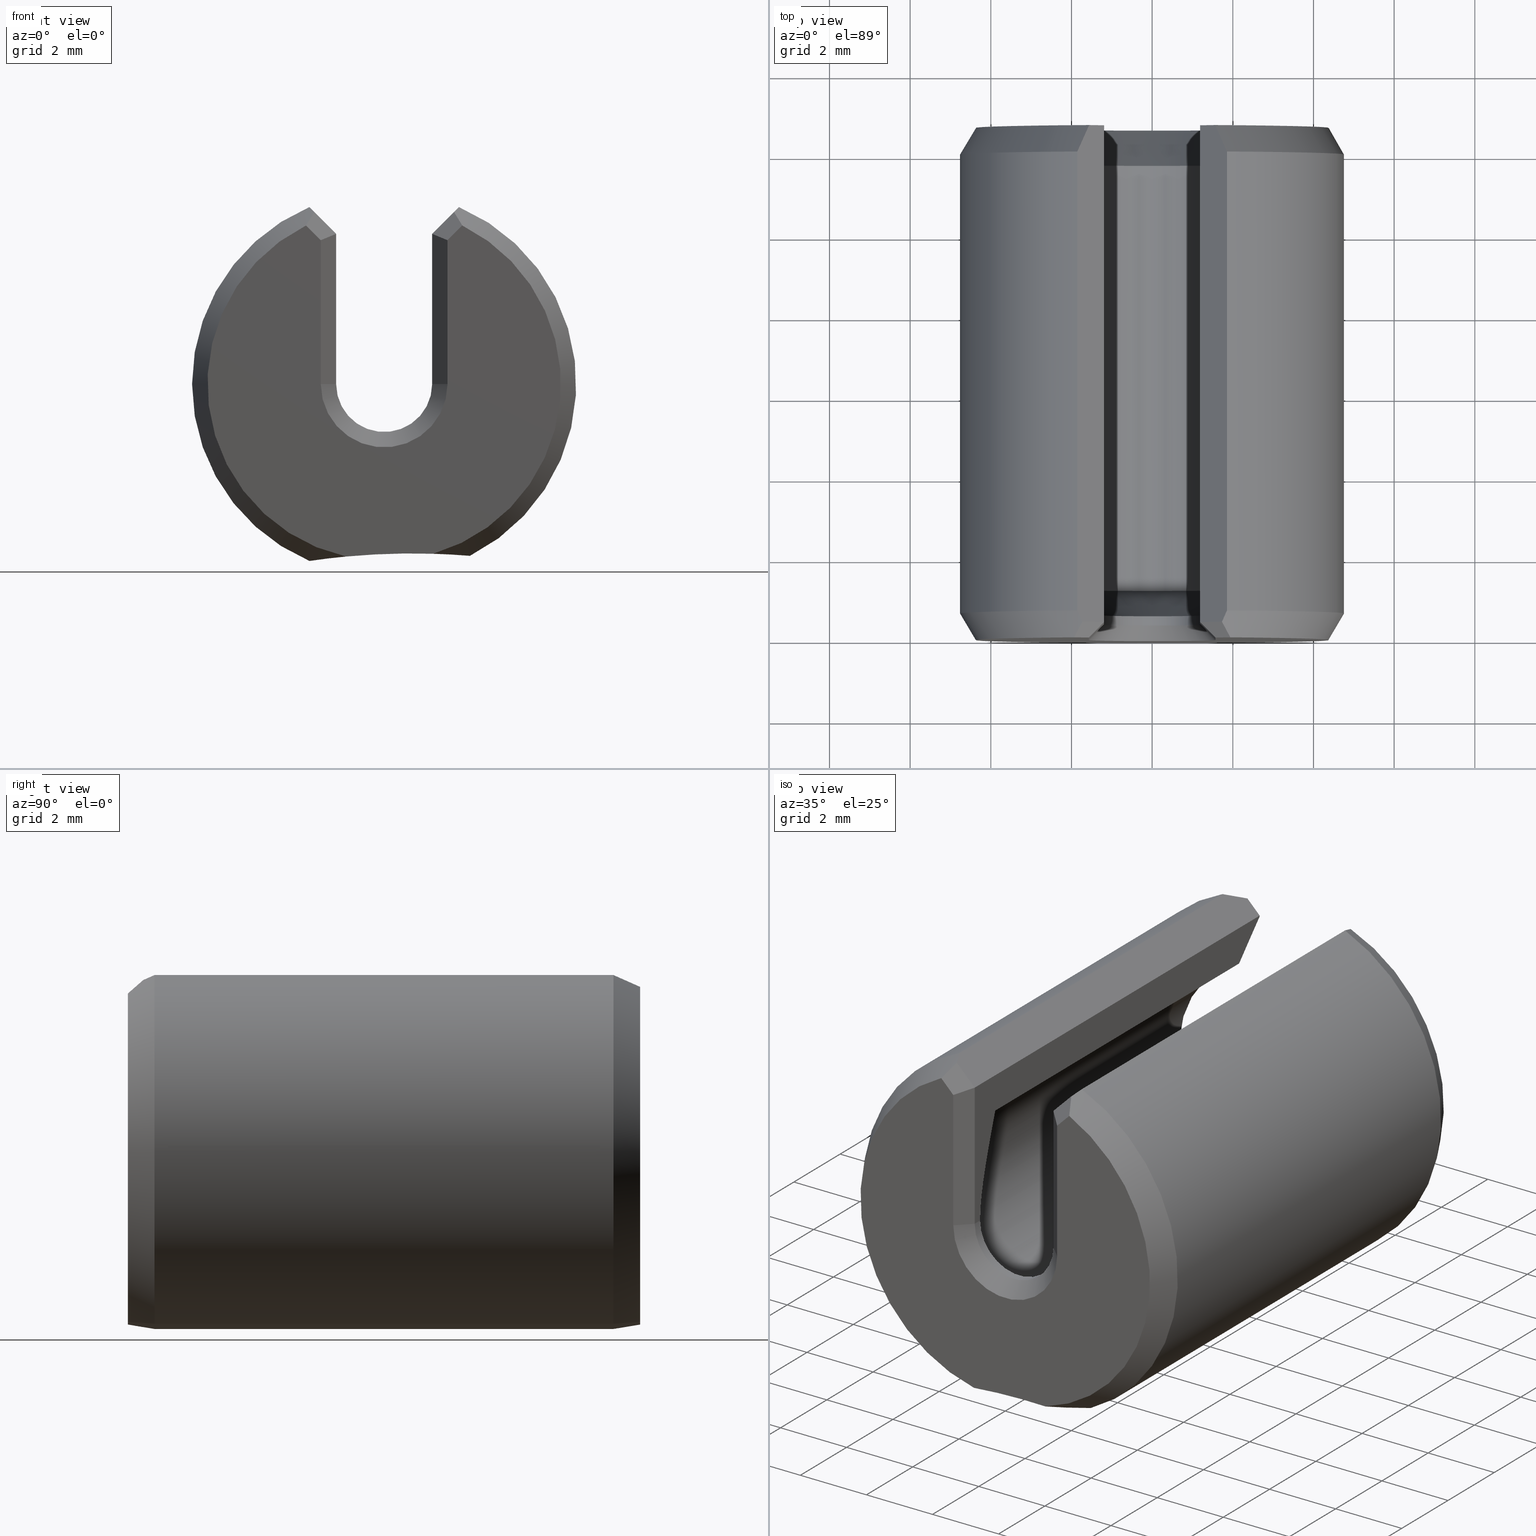
[diagram: canonical four-view strip — front | top / right | iso, engineering-drawing reading convention]
A machine part, canonical four-view strip (front | top / right | iso — engineering-drawing reading convention). The complete STEP part file that produces these views, byte-faithful:
ISO-10303-21;
HEADER;
FILE_DESCRIPTION (( 'STEP AP214' ),
    '1' );
FILE_NAME ('CS0004.STEP',
    '2012-08-01T18:32:51',
    ( '' ),
    ( '' ),
    'SwSTEP 2.0',
    'SolidWorks 2012',
    '' );
FILE_SCHEMA (( 'AUTOMOTIVE_DESIGN' ));
ENDSEC;

DATA;
#1 = CARTESIAN_POINT ( 'NONE',  ( 0.06149523579722515600, 0.5000000000000000000, 0.1611663301506977000 ) ) ;
#2 = CARTESIAN_POINT ( 'NONE',  ( 0.08375733241285908400, 0.4740192378864669400, -0.1677526729059237700 ) ) ;
#3 = CARTESIAN_POINT ( 'NONE',  ( 0.07273034051903576300, 0.4839626413900733900, -0.1668417271900475300 ) ) ;
#4 = CARTESIAN_POINT ( 'NONE',  ( 0.06103877988284105900, 0.4930028514079323200, -0.1661274275444351000 ) ) ;
#5 =( NAMED_UNIT ( * ) SI_UNIT ( $, .STERADIAN. ) SOLID_ANGLE_UNIT ( ) );
#6 =( NAMED_UNIT ( * ) PLANE_ANGLE_UNIT ( ) SI_UNIT ( $, .RADIAN. ) );
#7 =( CONVERSION_BASED_UNIT ( 'INCH', #476 ) LENGTH_UNIT ( ) NAMED_UNIT ( #381 ) );
#8 =( LENGTH_UNIT ( ) NAMED_UNIT ( * ) SI_UNIT ( $, .METRE. ) );
#9 = SURFACE_STYLE_USAGE ( .BOTH. , #10 ) ;
#10 = SURFACE_SIDE_STYLE ('',( #479 ) ) ;
#11 = FILL_AREA_STYLE ('',( #266 ) ) ;
#12 = CARTESIAN_POINT ( 'NONE',  ( 0.04785112842069328500, 0.5000000000000000000, -0.1657302612948712300 ) ) ;
#13 = PRODUCT_DEFINITION_CONTEXT ( 'detailed design', #178, 'design' ) ;
#14 = PRODUCT_DEFINITION_SHAPE ( 'NONE', 'NONE',  #186 ) ;
#15 = LENGTH_MEASURE_WITH_UNIT ( LENGTH_MEASURE( 0.02539999999999999900 ), #161 );
#16 = COLOUR_RGB ( '',0.7921568627450980000, 0.8196078431372548800, 0.9333333333333333500 ) ;
#17 = SURFACE_STYLE_FILL_AREA ( #167 ) ;
#18 = CARTESIAN_POINT ( 'NONE',  ( 0.0000000000000000000, 0.0000000000000000000, 0.0000000000000000000 ) ) ;
#19 = CARTESIAN_POINT ( 'NONE',  ( -0.04687500000000000700, 0.5000000000000000000, 0.1457582889941046700 ) ) ;
#20 = CARTESIAN_POINT ( 'NONE',  ( 0.06187500000000011700, 0.0000000000000000000, 0.0000000000000000000 ) ) ;
#21 = DIRECTION ( 'NONE',  ( 0.0000000000000000000, 0.0000000000000000000, -1.000000000000000000 ) ) ;
#22 = DIRECTION ( 'NONE',  ( 0.0000000000000000000, 1.000000000000000000, 0.0000000000000000000 ) ) ;
#23 = DIRECTION ( 'NONE',  ( 0.0000000000000000000, 0.0000000000000000000, 1.000000000000000000 ) ) ;
#24 = DIRECTION ( 'NONE',  ( -0.7071067811865462400, 0.0000000000000000000, 0.7071067811865487900 ) ) ;
#25 = CARTESIAN_POINT ( 'NONE',  ( -0.07210183751502337300, 0.0000000000000000000, 0.1505597284328993300 ) ) ;
#26 = VECTOR ( 'NONE', #612, 39.37007874015748100 ) ;
#27 = VECTOR ( 'NONE', #309, 39.37007874015748100 ) ;
#28 = VECTOR ( 'NONE', #299, 39.37007874015748100 ) ;
#29 = LINE ( 'NONE', #322, #27 ) ;
#30 = LINE ( 'NONE', #306, #28 ) ;
#31 = DIRECTION ( 'NONE',  ( 0.7071067811865462400, 0.0000000000000000000, -0.7071067811865487900 ) ) ;
#32 = DIRECTION ( 'NONE',  ( 0.0000000000000000000, 0.0000000000000000000, 1.000000000000000000 ) ) ;
#33 = DIRECTION ( 'NONE',  ( 0.0000000000000000000, 1.000000000000000000, 0.0000000000000000000 ) ) ;
#34 = DIRECTION ( 'NONE',  ( 0.0000000000000000000, 0.0000000000000000000, -1.000000000000000000 ) ) ;
#35 = CARTESIAN_POINT ( 'NONE',  ( 0.0000000000000000000, 0.5000000000000000000, 0.0000000000000000000 ) ) ;
#36 = DIRECTION ( 'NONE',  ( -0.0000000000000000000, 1.000000000000000000, -0.0000000000000000000 ) ) ;
#37 = CARTESIAN_POINT ( 'NONE',  ( 0.0000000000000000000, 0.02598076211353325300, 0.0000000000000000000 ) ) ;
#38 = DIRECTION ( 'NONE',  ( -0.0000000000000000000, -0.0000000000000000000, -1.000000000000000000 ) ) ;
#39 = CARTESIAN_POINT ( 'NONE',  ( -0.04687500000000000700, 0.5000000000000000000, 0.0000000000000000000 ) ) ;
#40 = CARTESIAN_POINT ( 'NONE',  ( -0.07302430484008531900, 0.5000000000000000000, 0.1726953991935578900 ) ) ;
#41 = DIRECTION ( 'NONE',  ( -0.0000000000000000000, -1.000000000000000000, -0.0000000000000000000 ) ) ;
#42 = DIRECTION ( 'NONE',  ( 0.0000000000000000000, 1.000000000000000000, 0.0000000000000000000 ) ) ;
#43 = DIRECTION ( 'NONE',  ( -0.7071067811865507900, -0.7071067811865443500, 0.0000000000000000000 ) ) ;
#44 = ORIENTED_EDGE ( 'NONE', *, *, #573, .T. ) ;
#45 = ORIENTED_EDGE ( 'NONE', *, *, #565, .F. ) ;
#46 = ORIENTED_EDGE ( 'NONE', *, *, #574, .T. ) ;
#47 = ORIENTED_EDGE ( 'NONE', *, *, #575, .T. ) ;
#48 = ORIENTED_EDGE ( 'NONE', *, *, #576, .T. ) ;
#49 = ORIENTED_EDGE ( 'NONE', *, *, #577, .T. ) ;
#50 = ORIENTED_EDGE ( 'NONE', *, *, #578, .T. ) ;
#51 = ORIENTED_EDGE ( 'NONE', *, *, #579, .T. ) ;
#52 = ORIENTED_EDGE ( 'NONE', *, *, #573, .F. ) ;
#53 = ORIENTED_EDGE ( 'NONE', *, *, #580, .T. ) ;
#54 = ORIENTED_EDGE ( 'NONE', *, *, #581, .T. ) ;
#55 = ORIENTED_EDGE ( 'NONE', *, *, #582, .F. ) ;
#56 = ORIENTED_EDGE ( 'NONE', *, *, #575, .F. ) ;
#57 = ORIENTED_EDGE ( 'NONE', *, *, #554, .T. ) ;
#58 = ORIENTED_EDGE ( 'NONE', *, *, #583, .T. ) ;
#59 = ORIENTED_EDGE ( 'NONE', *, *, #584, .T. ) ;
#60 = ORIENTED_EDGE ( 'NONE', *, *, #580, .F. ) ;
#61 = ORIENTED_EDGE ( 'NONE', *, *, #574, .F. ) ;
#62 = ORIENTED_EDGE ( 'NONE', *, *, #579, .F. ) ;
#63 = ORIENTED_EDGE ( 'NONE', *, *, #585, .T. ) ;
#64 = ORIENTED_EDGE ( 'NONE', *, *, #558, .F. ) ;
#65 = ORIENTED_EDGE ( 'NONE', *, *, #582, .T. ) ;
#66 = ORIENTED_EDGE ( 'NONE', *, *, #586, .T. ) ;
#67 = ORIENTED_EDGE ( 'NONE', *, *, #587, .T. ) ;
#68 = ORIENTED_EDGE ( 'NONE', *, *, #560, .F. ) ;
#69 = ORIENTED_EDGE ( 'NONE', *, *, #588, .T. ) ;
#70 = ORIENTED_EDGE ( 'NONE', *, *, #577, .F. ) ;
#71 = ORIENTED_EDGE ( 'NONE', *, *, #576, .F. ) ;
#72 = ORIENTED_EDGE ( 'NONE', *, *, #591, .T. ) ;
#73 = ORIENTED_EDGE ( 'NONE', *, *, #557, .F. ) ;
#74 = ORIENTED_EDGE ( 'NONE', *, *, #571, .F. ) ;
#75 = ORIENTED_EDGE ( 'NONE', *, *, #591, .F. ) ;
#76 = ORIENTED_EDGE ( 'NONE', *, *, #537, .T. ) ;
#77 = ORIENTED_EDGE ( 'NONE', *, *, #592, .T. ) ;
#78 = ORIENTED_EDGE ( 'NONE', *, *, #588, .F. ) ;
#79 = ORIENTED_EDGE ( 'NONE', *, *, #590, .T. ) ;
#80 = ORIENTED_EDGE ( 'NONE', *, *, #594, .F. ) ;
#81 = ORIENTED_EDGE ( 'NONE', *, *, #585, .F. ) ;
#82 = ORIENTED_EDGE ( 'NONE', *, *, #578, .F. ) ;
#83 = ORIENTED_EDGE ( 'NONE', *, *, #587, .F. ) ;
#84 = ORIENTED_EDGE ( 'NONE', *, *, #593, .T. ) ;
#85 = ORIENTED_EDGE ( 'NONE', *, *, #594, .T. ) ;
#86 = ORIENTED_EDGE ( 'NONE', *, *, #513, .F. ) ;
#87 = ORIENTED_EDGE ( 'NONE', *, *, #562, .F. ) ;
#88 = ORIENTED_EDGE ( 'NONE', *, *, #561, .F. ) ;
#89 = ORIENTED_EDGE ( 'NONE', *, *, #595, .T. ) ;
#90 = ORIENTED_EDGE ( 'NONE', *, *, #596, .T. ) ;
#91 = ORIENTED_EDGE ( 'NONE', *, *, #556, .F. ) ;
#92 = ORIENTED_EDGE ( 'NONE', *, *, #564, .F. ) ;
#93 = ORIENTED_EDGE ( 'NONE', *, *, #563, .F. ) ;
#94 = ORIENTED_EDGE ( 'NONE', *, *, #583, .F. ) ;
#95 = ORIENTED_EDGE ( 'NONE', *, *, #572, .T. ) ;
#96 = ORIENTED_EDGE ( 'NONE', *, *, #559, .F. ) ;
#97 = ORIENTED_EDGE ( 'NONE', *, *, #589, .F. ) ;
#98 = ORIENTED_EDGE ( 'NONE', *, *, #554, .F. ) ;
#99 = ORIENTED_EDGE ( 'NONE', *, *, #530, .F. ) ;
#100 = ORIENTED_EDGE ( 'NONE', *, *, #519, .F. ) ;
#101 = ORIENTED_EDGE ( 'NONE', *, *, #512, .F. ) ;
#102 = ORIENTED_EDGE ( 'NONE', *, *, #504, .T. ) ;
#103 = ORIENTED_EDGE ( 'NONE', *, *, #589, .T. ) ;
#104 = ORIENTED_EDGE ( 'NONE', *, *, #590, .F. ) ;
#105 = ORIENTED_EDGE ( 'NONE', *, *, #536, .T. ) ;
#106 = ORIENTED_EDGE ( 'NONE', *, *, #595, .F. ) ;
#107 = PRESENTATION_STYLE_ASSIGNMENT (( #169 ) ) ;
#108 = VECTOR ( 'NONE', #617, 39.37007874015748100 ) ;
#109 = LINE ( 'NONE', #607, #108 ) ;
#110 = LINE ( 'NONE', #611, #26 ) ;
#111 = VECTOR ( 'NONE', #626, 39.37007874015748100 ) ;
#112 = LINE ( 'NONE', #619, #111 ) ;
#113 = CIRCLE ( 'NONE', #250, 0.1725000000000000100 ) ;
#114 = VECTOR ( 'NONE', #31, 39.37007874015748100 ) ;
#115 = LINE ( 'NONE', #546, #114 ) ;
#116 = CIRCLE ( 'NONE', #251, 0.1725000000000000400 ) ;
#117 = VECTOR ( 'NONE', #545, 39.37007874015748100 ) ;
#118 = CIRCLE ( 'NONE', #252, 0.6875000000000000000 ) ;
#119 = VECTOR ( 'NONE', #743, 39.37007874015748100 ) ;
#120 = LINE ( 'NONE', #542, #117 ) ;
#121 = LINE ( 'NONE', #740, #119 ) ;
#122 = VECTOR ( 'NONE', #38, 39.37007874015748100 ) ;
#123 = CIRCLE ( 'NONE', #254, 0.1531102362204726500 ) ;
#124 = CIRCLE ( 'NONE', #255, 0.1875000000000000300 ) ;
#125 = LINE ( 'NONE', #39, #122 ) ;
#126 = FACE_OUTER_BOUND ( 'NONE', #712, .T. ) ;
#127 = FACE_OUTER_BOUND ( 'NONE', #711, .T. ) ;
#128 = FACE_OUTER_BOUND ( 'NONE', #731, .T. ) ;
#129 = FACE_OUTER_BOUND ( 'NONE', #714, .T. ) ;
#130 = CYLINDRICAL_SURFACE ( 'NONE', #511, 0.1875000000000000300 ) ;
#131 = CONICAL_SURFACE ( 'NONE', #523, 0.1875000000000000300, 0.5235987755983005900 ) ;
#132 = FACE_OUTER_BOUND ( 'NONE', #718, .T. ) ;
#133 = CYLINDRICAL_SURFACE ( 'NONE', #510, 0.1875000000000000300 ) ;
#134 = CONICAL_SURFACE ( 'NONE', #515, 0.1725000000000000400, 0.5235987755983011500 ) ;
#135 = FACE_OUTER_BOUND ( 'NONE', #708, .T. ) ;
#136 = SHAPE_DEFINITION_REPRESENTATION ( #14, #487 ) ;
#137 = FACE_OUTER_BOUND ( 'NONE', #727, .T. ) ;
#138 = CONICAL_SURFACE ( 'NONE', #520, 0.04687500000000000700, 0.7853981633974528300 ) ;
#139 = FACE_OUTER_BOUND ( 'NONE', #709, .T. ) ;
#140 = VECTOR ( 'NONE', #544, 39.37007874015748100 ) ;
#141 = VECTOR ( 'NONE', #647, 39.37007874015748100 ) ;
#142 = LINE ( 'NONE', #621, #140 ) ;
#143 = CIRCLE ( 'NONE', #259, 0.1181102362204723100 ) ;
#144 = CIRCLE ( 'NONE', #258, 0.04687500000000000700 ) ;
#145 = LINE ( 'NONE', #630, #141 ) ;
#146 = LINE ( 'NONE', #25, #738 ) ;
#147 = LINE ( 'NONE', #681, #151 ) ;
#148 = VECTOR ( 'NONE', #21, 39.37007874015748100 ) ;
#149 = CIRCLE ( 'NONE', #249, 0.06187500000000011700 ) ;
#150 = VECTOR ( 'NONE', #678, 39.37007874015748100 ) ;
#151 = VECTOR ( 'NONE', #680, 39.37007874015748100 ) ;
#152 = LINE ( 'NONE', #679, #150 ) ;
#153 = LINE ( 'NONE', #20, #148 ) ;
#154 = CARTESIAN_POINT ( 'NONE',  ( 0.07141045252930579300, 0.02231754105395833800, 0.1710815468827783800 ) ) ;
#155 = CARTESIAN_POINT ( 'NONE',  ( 0.07302430484008527700, 0.02598076211353323200, 0.1726953991935578900 ) ) ;
#156 = FILL_AREA_STYLE_COLOUR ( '', #16 ) ;
#157 = CARTESIAN_POINT ( 'NONE',  ( -0.04687500000000002100, 0.01499999999999999600, 0.1465460943534724900 ) ) ;
#158 = CARTESIAN_POINT ( 'NONE',  ( -0.06979336728324592200, 0.01865716359912524000, 0.1694644616367184900 ) ) ;
#159 = CARTESIAN_POINT ( 'NONE',  ( -0.06817266041546231300, 0.01499999999999999400, 0.1678437547689348700 ) ) ;
#160 = DIRECTION ( 'NONE',  ( 0.7071067811865462400, 0.0000000000000000000, -0.7071067811865487900 ) ) ;
#161 =( LENGTH_UNIT ( ) NAMED_UNIT ( * ) SI_UNIT ( $, .METRE. ) );
#162 =( CONVERSION_BASED_UNIT ( 'INCH', #15 ) LENGTH_UNIT ( ) NAMED_UNIT ( #379 ) );
#163 =( NAMED_UNIT ( * ) PLANE_ANGLE_UNIT ( ) SI_UNIT ( $, .RADIAN. ) );
#164 =( NAMED_UNIT ( * ) SI_UNIT ( $, .STERADIAN. ) SOLID_ANGLE_UNIT ( ) );
#165 = APPLICATION_PROTOCOL_DEFINITION ( 'draft international standard', 'automotive_design', 1998, #166 ) ;
#166 = APPLICATION_CONTEXT ( 'automotive_design' ) ;
#167 = FILL_AREA_STYLE ('',( #156 ) ) ;
#168 = SURFACE_SIDE_STYLE ('',( #17 ) ) ;
#169 = SURFACE_STYLE_USAGE ( .BOTH. , #168 ) ;
#170 =( LENGTH_UNIT ( ) NAMED_UNIT ( * ) SI_UNIT ( $, .METRE. ) );
#171 =( CONVERSION_BASED_UNIT ( 'INCH', #739 ) LENGTH_UNIT ( ) NAMED_UNIT ( #377 ) );
#172 =( NAMED_UNIT ( * ) PLANE_ANGLE_UNIT ( ) SI_UNIT ( $, .RADIAN. ) );
#173 =( NAMED_UNIT ( * ) SI_UNIT ( $, .STERADIAN. ) SOLID_ANGLE_UNIT ( ) );
#174 = CARTESIAN_POINT ( 'NONE',  ( 0.0000000000000000000, 0.0000000000000000000, 0.0000000000000000000 ) ) ;
#175 = DIRECTION ( 'NONE',  ( 0.0000000000000000000, 0.0000000000000000000, 1.000000000000000000 ) ) ;
#176 = DIRECTION ( 'NONE',  ( 1.000000000000000000, 0.0000000000000000000, 0.0000000000000000000 ) ) ;
#177 = PRODUCT_CONTEXT ( 'NONE', #166, 'mechanical' ) ;
#178 = APPLICATION_CONTEXT ( 'automotive_design' ) ;
#179 = APPLICATION_PROTOCOL_DEFINITION ( 'draft international standard', 'automotive_design', 1998, #178 ) ;
#180 = VECTOR ( 'NONE', #288, 39.37007874015748100 ) ;
#181 = LINE ( 'NONE', #290, #180 ) ;
#182 = LINE ( 'NONE', #157, #183 ) ;
#183 = VECTOR ( 'NONE', #160, 39.37007874015748100 ) ;
#184 = AXIS2_PLACEMENT_3D ( 'NONE', #174, #175, #176 ) ;
#185 =( GEOMETRIC_REPRESENTATION_CONTEXT ( 3 ) GLOBAL_UNCERTAINTY_ASSIGNED_CONTEXT ( ( #492 ) ) GLOBAL_UNIT_ASSIGNED_CONTEXT ( ( #171, #172, #173 ) ) REPRESENTATION_CONTEXT ( 'NONE', 'WORKASPACE' ) );
#186 = PRODUCT_DEFINITION ( 'UNKNOWN', '', #188, #13 ) ;
#187 = PRODUCT_RELATED_PRODUCT_CATEGORY ( 'part', '', ( #540 ) ) ;
#188 = PRODUCT_DEFINITION_FORMATION_WITH_SPECIFIED_SOURCE ( 'ANY', '', #540, .NOT_KNOWN. ) ;
#189 = DIRECTION ( 'NONE',  ( 0.0000000000000000000, 0.0000000000000000000, 1.000000000000000000 ) ) ;
#190 = PLANE ( 'NONE',  #509 ) ;
#191 = PLANE ( 'NONE',  #514 ) ;
#192 = DIRECTION ( 'NONE',  ( 0.0000000000000000000, 0.0000000000000000000, -1.000000000000000000 ) ) ;
#193 = DIRECTION ( 'NONE',  ( -0.0000000000000000000, 1.000000000000000000, -0.0000000000000000000 ) ) ;
#194 = CARTESIAN_POINT ( 'NONE',  ( 0.0000000000000000000, 0.5000000000000000000, 0.0000000000000000000 ) ) ;
#195 = DIRECTION ( 'NONE',  ( -0.0000000000000000000, -1.000000000000000000, -0.0000000000000000000 ) ) ;
#196 = CARTESIAN_POINT ( 'NONE',  ( 0.0000000000000000000, 0.5000000000000000000, 0.0000000000000000000 ) ) ;
#197 = DIRECTION ( 'NONE',  ( 0.0000000000000000000, 0.0000000000000000000, -1.000000000000000000 ) ) ;
#198 = DIRECTION ( 'NONE',  ( -0.0000000000000000000, -1.000000000000000000, -0.0000000000000000000 ) ) ;
#199 = CARTESIAN_POINT ( 'NONE',  ( 0.0000000000000000000, 0.5000000000000000000, 0.0000000000000000000 ) ) ;
#200 = DIRECTION ( 'NONE',  ( 0.0000000000000000000, 0.0000000000000000000, -1.000000000000000000 ) ) ;
#201 = CARTESIAN_POINT ( 'NONE',  ( 0.0000000000000000000, 0.5000000000000000000, 0.0000000000000000000 ) ) ;
#202 = DIRECTION ( 'NONE',  ( -0.7071067811865460200, 0.0000000000000000000, -0.7071067811865490200 ) ) ;
#203 = DIRECTION ( 'NONE',  ( 0.0000000000000000000, 0.0000000000000000000, 1.000000000000000000 ) ) ;
#204 = CARTESIAN_POINT ( 'NONE',  ( 0.04687500000000000700, 0.01499999999999997700, 0.2816858377267488800 ) ) ;
#205 = DIRECTION ( 'NONE',  ( -0.0000000000000000000, -1.000000000000000000, -0.0000000000000000000 ) ) ;
#206 = DIRECTION ( 'NONE',  ( 0.5000000000000013300, 0.7071067811865471300, -0.4999999999999992200 ) ) ;
#207 = CARTESIAN_POINT ( 'NONE',  ( 0.0000000000000000000, 0.0000000000000000000, 0.0000000000000000000 ) ) ;
#208 = CARTESIAN_POINT ( 'NONE',  ( 0.0000000000000000000, 0.01499999999999997700, 0.0000000000000000000 ) ) ;
#209 = CARTESIAN_POINT ( 'NONE',  ( -0.04687500000000000700, 0.05000000000000001000, 0.1084101576193659500 ) ) ;
#210 = DIRECTION ( 'NONE',  ( 0.0000000000000000000, 0.0000000000000000000, -1.000000000000000000 ) ) ;
#211 = DIRECTION ( 'NONE',  ( 0.0000000000000000000, -1.000000000000000000, 0.0000000000000000000 ) ) ;
#212 = DIRECTION ( 'NONE',  ( 0.0000000000000000000, -1.000000000000000000, 0.0000000000000000000 ) ) ;
#213 = DIRECTION ( 'NONE',  ( 0.0000000000000000000, 0.0000000000000000000, 1.000000000000000000 ) ) ;
#214 = DIRECTION ( 'NONE',  ( 0.7071067811865443500, 0.7071067811865507900, -0.0000000000000000000 ) ) ;
#215 = CARTESIAN_POINT ( 'NONE',  ( -0.03922894545893804200, 0.0000000000000000000, 0.03922894545893787500 ) ) ;
#216 = PLANE ( 'NONE',  #516 ) ;
#217 = CARTESIAN_POINT ( 'NONE',  ( 0.07371429709649567100, 0.004945062657089568600, 0.1591655626908129200 ) ) ;
#218 = CARTESIAN_POINT ( 'NONE',  ( 0.07101508980858671500, 0.009947353912967591200, 0.1635406635399070400 ) ) ;
#219 = CARTESIAN_POINT ( 'NONE',  ( -0.07291662851555622000, 0.2500000000000000000, -0.1727408906018617600 ) ) ;
#220 = CARTESIAN_POINT ( 'NONE',  ( 0.06817266041546225800, 0.01499999999999974800, 0.1678437547689348400 ) ) ;
#221 = CARTESIAN_POINT ( 'NONE',  ( 0.06536011632181866500, 0.4913592217458200900, 0.1650312106752912200 ) ) ;
#222 = DIRECTION ( 'NONE',  ( 0.6785983445458518800, -0.6785983445458456700, -0.2810846377148116200 ) ) ;
#223 = CARTESIAN_POINT ( 'NONE',  ( 0.07302430484008525000, 0.4740192378864669900, 0.1726953991935578400 ) ) ;
#224 = CARTESIAN_POINT ( 'NONE',  ( 0.06920121594228201300, 0.4826971197902301700, 0.1688723102957545600 ) ) ;
#225 = CARTESIAN_POINT ( 'NONE',  ( 0.02109796292299801300, 0.04077703707700173300, 0.1572232927085606400 ) ) ;
#226 = DIRECTION ( 'NONE',  ( 0.0000000000000000000, 0.0000000000000000000, 1.000000000000000000 ) ) ;
#227 = DIRECTION ( 'NONE',  ( 0.0000000000000000000, 1.000000000000000000, 0.0000000000000000000 ) ) ;
#228 = DIRECTION ( 'NONE',  ( -0.0000000000000000000, 1.000000000000000000, -0.0000000000000000000 ) ) ;
#229 = CARTESIAN_POINT ( 'NONE',  ( 0.0000000000000000000, 0.5000000000000000000, 0.0000000000000000000 ) ) ;
#230 = DIRECTION ( 'NONE',  ( 0.0000000000000000000, 0.0000000000000000000, 1.000000000000000000 ) ) ;
#231 = ORIENTED_EDGE ( 'NONE', *, *, #558, .T. ) ;
#232 = ORIENTED_EDGE ( 'NONE', *, *, #560, .T. ) ;
#233 = ORIENTED_EDGE ( 'NONE', *, *, #561, .T. ) ;
#234 = ORIENTED_EDGE ( 'NONE', *, *, #526, .T. ) ;
#235 = ORIENTED_EDGE ( 'NONE', *, *, #562, .T. ) ;
#236 = ORIENTED_EDGE ( 'NONE', *, *, #563, .T. ) ;
#237 = ORIENTED_EDGE ( 'NONE', *, *, #564, .T. ) ;
#238 = ORIENTED_EDGE ( 'NONE', *, *, #565, .T. ) ;
#239 = ORIENTED_EDGE ( 'NONE', *, *, #566, .T. ) ;
#240 = ORIENTED_EDGE ( 'NONE', *, *, #567, .T. ) ;
#241 = ORIENTED_EDGE ( 'NONE', *, *, #559, .T. ) ;
#242 = ORIENTED_EDGE ( 'NONE', *, *, #568, .T. ) ;
#243 = ORIENTED_EDGE ( 'NONE', *, *, #569, .T. ) ;
#244 = ORIENTED_EDGE ( 'NONE', *, *, #570, .T. ) ;
#245 = ORIENTED_EDGE ( 'NONE', *, *, #571, .T. ) ;
#246 = ORIENTED_EDGE ( 'NONE', *, *, #572, .F. ) ;
#247 = MECHANICAL_DESIGN_GEOMETRIC_PRESENTATION_REPRESENTATION (  '', ( #256 ), #185 ) ;
#248 = AXIS2_PLACEMENT_3D ( 'NONE', #207, #205, #203 ) ;
#249 = AXIS2_PLACEMENT_3D ( 'NONE', #18, #22, #23 ) ;
#250 = AXIS2_PLACEMENT_3D ( 'NONE', #682, #684, #683 ) ;
#251 = AXIS2_PLACEMENT_3D ( 'NONE', #35, #33, #32 ) ;
#252 = AXIS2_PLACEMENT_3D ( 'NONE', #543, #541, #34 ) ;
#253 = PRESENTATION_LAYER_ASSIGNMENT (  '', '', ( #256 ) ) ;
#254 = AXIS2_PLACEMENT_3D ( 'NONE', #328, #327, #326 ) ;
#255 = AXIS2_PLACEMENT_3D ( 'NONE', #742, #741, #744 ) ;
#256 = STYLED_ITEM ( 'NONE', ( #107 ), #487 ) ;
#257 =( GEOMETRIC_REPRESENTATION_CONTEXT ( 3 ) GLOBAL_UNCERTAINTY_ASSIGNED_CONTEXT ( ( #496 ) ) GLOBAL_UNIT_ASSIGNED_CONTEXT ( ( #162, #163, #164 ) ) REPRESENTATION_CONTEXT ( 'NONE', 'WORKASPACE' ) );
#258 = AXIS2_PLACEMENT_3D ( 'NONE', #610, #609, #608 ) ;
#259 = AXIS2_PLACEMENT_3D ( 'NONE', #625, #624, #623 ) ;
#260 = AXIS2_PLACEMENT_3D ( 'NONE', #646, #644, #643 ) ;
#261 = AXIS2_PLACEMENT_3D ( 'NONE', #654, #193, #189 ) ;
#262 = AXIS2_PLACEMENT_3D ( 'NONE', #325, #324, #323 ) ;
#263 = AXIS2_PLACEMENT_3D ( 'NONE', #37, #36, #745 ) ;
#264 = AXIS2_PLACEMENT_3D ( 'NONE', #229, #227, #226 ) ;
#265 = AXIS2_PLACEMENT_3D ( 'NONE', #311, #228, #230 ) ;
#266 = FILL_AREA_STYLE_COLOUR ( '', #478 ) ;
#267 = CARTESIAN_POINT ( 'NONE',  ( -0.06187500000000011700, 0.0000000000000000000, 0.1403328909178760400 ) ) ;
#268 = CARTESIAN_POINT ( 'NONE',  ( -0.06817266041546231300, 0.01499999999999999400, 0.1678437547689348700 ) ) ;
#269 = CARTESIAN_POINT ( 'NONE',  ( 0.04687500000000000700, 0.01499999999999997700, 0.0000000000000000000 ) ) ;
#270 = CARTESIAN_POINT ( 'NONE',  ( 0.06817266041546225800, 0.01499999999999974800, 0.1678437547689348400 ) ) ;
#271 = CARTESIAN_POINT ( 'NONE',  ( -0.04687500000000000700, 0.4649999999999997500, 0.1084101576193659500 ) ) ;
#272 = CARTESIAN_POINT ( 'NONE',  ( 0.04687500000000000700, 0.01499999999999997700, 0.1465460943534724600 ) ) ;
#273 = CARTESIAN_POINT ( 'NONE',  ( 0.04687500000000000700, 0.02407249438482643400, 0.0000000000000000000 ) ) ;
#274 = CARTESIAN_POINT ( 'NONE',  ( 0.06187500000000011700, 0.0000000000000000000, 0.0000000000000000000 ) ) ;
#275 = CARTESIAN_POINT ( 'NONE',  ( -0.04687500000000000700, 0.02407249438482643400, 0.0000000000000000000 ) ) ;
#276 = CARTESIAN_POINT ( 'NONE',  ( -0.04687500000000000700, 0.01499999999999997700, 0.0000000000000000000 ) ) ;
#277 = CARTESIAN_POINT ( 'NONE',  ( 0.04687500000000000700, 0.4649999999999997500, 0.1084101576193659500 ) ) ;
#278 = CARTESIAN_POINT ( 'NONE',  ( -0.03721179448869235700, 0.0000000000000000000, -0.1684385120776459300 ) ) ;
#279 = CARTESIAN_POINT ( 'NONE',  ( 0.04785112842069328500, 0.5000000000000000000, -0.1657302612948712300 ) ) ;
#280 = CARTESIAN_POINT ( 'NONE',  ( 0.08375733241285908400, 0.4740192378864669400, -0.1677526729059237700 ) ) ;
#281 = CARTESIAN_POINT ( 'NONE',  ( -0.06187500000000011700, 0.0000000000000000000, 0.0000000000000000000 ) ) ;
#282 = CARTESIAN_POINT ( 'NONE',  ( -0.03721179448869230800, 0.5000000000000000000, -0.1684385120776459300 ) ) ;
#283 = CARTESIAN_POINT ( 'NONE',  ( -0.07626657323412496000, -6.535245526497276000E-018, 0.1547244641520008900 ) ) ;
#284 = CARTESIAN_POINT ( 'NONE',  ( -0.07141045252930584800, 0.02231754105395846200, 0.1710815468827783800 ) ) ;
#285 = CARTESIAN_POINT ( 'NONE',  ( 0.04687500000000000700, 0.4765377943818933100, 0.1209803046409519800 ) ) ;
#286 = CARTESIAN_POINT ( 'NONE',  ( -0.07302430484008529100, 0.4740192378864669900, 0.1726953991935578400 ) ) ;
#287 = CARTESIAN_POINT ( 'NONE',  ( -0.07302430484008531900, 0.02598076211353332600, 0.1726953991935578900 ) ) ;
#288 = DIRECTION ( 'NONE',  ( 0.7071067811865460200, -0.0000000000000000000, 0.7071067811865490200 ) ) ;
#289 = CARTESIAN_POINT ( 'NONE',  ( 0.06817266041546225800, 0.01499999999999974800, 0.1678437547689348400 ) ) ;
#290 = CARTESIAN_POINT ( 'NONE',  ( 0.06149523579722515600, 0.01499999999999980500, 0.1611663301506977000 ) ) ;
#291 = CARTESIAN_POINT ( 'NONE',  ( -0.07291662851555622000, 0.02598076211353322900, -0.1727408906018617600 ) ) ;
#292 = CARTESIAN_POINT ( 'NONE',  ( -0.06920121594228202700, 0.4826971197902301700, 0.1688723102957545600 ) ) ;
#293 = CARTESIAN_POINT ( 'NONE',  ( -0.06196994513928609500, 0.01603738463539981800, -0.1711303458099426300 ) ) ;
#294 = CARTESIAN_POINT ( 'NONE',  ( 0.06979336728324588000, 0.01865716359912505300, 0.1694644616367184400 ) ) ;
#295 = CARTESIAN_POINT ( 'NONE',  ( 0.04785112842069328500, 0.0000000000000000000, -0.1657302612948712300 ) ) ;
#296 = CARTESIAN_POINT ( 'NONE',  ( 0.06103882452476454300, 0.006997172278329810000, -0.1661274288888947000 ) ) ;
#297 = CARTESIAN_POINT ( 'NONE',  ( -0.03721179448869235700, 0.0000000000000000000, -0.1684385120776459300 ) ) ;
#298 = CARTESIAN_POINT ( 'NONE',  ( -0.05034751709205492100, 0.006997172278329973100, -0.1696737700744136200 ) ) ;
#299 = DIRECTION ( 'NONE',  ( 0.0000000000000000000, 1.000000000000000000, 0.0000000000000000000 ) ) ;
#300 = CARTESIAN_POINT ( 'NONE',  ( -0.03721179448869230800, 0.5000000000000000000, -0.1684385120776459300 ) ) ;
#301 = CARTESIAN_POINT ( 'NONE',  ( -0.05034747262606834700, 0.4930028514079325400, -0.1696737658929179900 ) ) ;
#302 = CARTESIAN_POINT ( 'NONE',  ( 0.07273036938065037500, 0.01603738463539979700, -0.1668417295743210000 ) ) ;
#303 = CARTESIAN_POINT ( 'NONE',  ( 0.08375733241285894500, 0.02598076211353306600, -0.1677526729059236900 ) ) ;
#304 = CARTESIAN_POINT ( 'NONE',  ( -0.06149523579722518400, 0.5000000000000000000, 0.1611663301506977000 ) ) ;
#305 = CARTESIAN_POINT ( 'NONE',  ( -0.06536011632181869300, 0.4913592217458200300, 0.1650312106752912200 ) ) ;
#306 = CARTESIAN_POINT ( 'NONE',  ( 0.04687500000000000700, 0.5000000000000000000, 0.1465460943534724600 ) ) ;
#307 = CARTESIAN_POINT ( 'NONE',  ( -0.06196991648779281300, 0.4839626413900733300, -0.1711303415945551500 ) ) ;
#308 = CARTESIAN_POINT ( 'NONE',  ( -0.07291662851555635900, 0.4740192378864669900, -0.1727408906018617100 ) ) ;
#309 = DIRECTION ( 'NONE',  ( 0.0000000000000000000, 0.0000000000000000000, 1.000000000000000000 ) ) ;
#310 = CARTESIAN_POINT ( 'NONE',  ( 0.04687500000000000700, 0.4649999999999997500, 0.1084101576193659500 ) ) ;
#311 = CARTESIAN_POINT ( 'NONE',  ( 0.0000000000000000000, 0.02598076211353318400, 0.0000000000000000000 ) ) ;
#312 = CARTESIAN_POINT ( 'NONE',  ( -0.07626657323412496000, -6.535245526497276000E-018, 0.1547244641520008900 ) ) ;
#313 = DIRECTION ( 'NONE',  ( 0.0000000000000000000, 1.000000000000000000, 0.0000000000000000000 ) ) ;
#314 = DIRECTION ( 'NONE',  ( 0.7071067811865507900, -0.7071067811865443500, 0.0000000000000000000 ) ) ;
#315 = DIRECTION ( 'NONE',  ( 0.0000000000000000000, 0.0000000000000000000, 1.000000000000000000 ) ) ;
#316 = CARTESIAN_POINT ( 'NONE',  ( 0.04687500000000000700, 0.01499999999999997700, 0.0000000000000000000 ) ) ;
#317 = DIRECTION ( 'NONE',  ( 0.0000000000000000000, -1.000000000000000000, 0.0000000000000000000 ) ) ;
#318 = DIRECTION ( 'NONE',  ( -0.0000000000000000000, -1.000000000000000000, -0.0000000000000000000 ) ) ;
#319 = CARTESIAN_POINT ( 'NONE',  ( 0.0000000000000000000, 0.4740192378864669900, 0.0000000000000000000 ) ) ;
#320 = CARTESIAN_POINT ( 'NONE',  ( 0.07302430484008527700, 0.5000000000000000000, 0.1726953991935578900 ) ) ;
#321 = CARTESIAN_POINT ( 'NONE',  ( 0.08375733241285894500, 0.2500000000000000000, -0.1677526729059236900 ) ) ;
#322 = CARTESIAN_POINT ( 'NONE',  ( 0.04687500000000000700, 0.01499999999999997700, 0.2816858377267488800 ) ) ;
#323 = DIRECTION ( 'NONE',  ( 0.0000000000000000000, 0.0000000000000000000, -1.000000000000000000 ) ) ;
#324 = DIRECTION ( 'NONE',  ( 0.0000000000000000000, -1.000000000000000000, 0.0000000000000000000 ) ) ;
#325 = CARTESIAN_POINT ( 'NONE',  ( 0.02715540016017425500, 0.0000000000000000000, -0.8529186902077616800 ) ) ;
#326 = DIRECTION ( 'NONE',  ( 0.0000000000000000000, 0.0000000000000000000, 1.000000000000000000 ) ) ;
#327 = DIRECTION ( 'NONE',  ( -0.0000000000000000000, -1.000000000000000000, -0.0000000000000000000 ) ) ;
#328 = CARTESIAN_POINT ( 'NONE',  ( 0.0000000000000000000, 0.5000000000000000000, 0.0000000000000000000 ) ) ;
#329 = CARTESIAN_POINT ( 'NONE',  ( 0.06187500000000011700, 0.0000000000000000000, 0.1403328909178764600 ) ) ;
#330 = CARTESIAN_POINT ( 'NONE',  ( -0.04687500000000000700, 0.05000000000000001000, 0.1084101576193659500 ) ) ;
#331 = DIRECTION ( 'NONE',  ( 0.0000000000000000000, 1.000000000000000000, 0.0000000000000000000 ) ) ;
#332 = PLANE ( 'NONE',  #507 ) ;
#333 = CARTESIAN_POINT ( 'NONE',  ( 0.04687500000000000700, 0.05000000000000001000, 0.1084101576193659500 ) ) ;
#334 = CARTESIAN_POINT ( 'NONE',  ( -0.06149523579722518400, 0.5000000000000000000, 0.1611663301506977000 ) ) ;
#335 = CARTESIAN_POINT ( 'NONE',  ( 0.07626657323412471000, -6.535245526497275300E-018, 0.1547244641520010800 ) ) ;
#336 = CARTESIAN_POINT ( 'NONE',  ( 0.04687499999999999300, 0.5000000000000000000, 0.1465460943534724600 ) ) ;
#337 = CARTESIAN_POINT ( 'NONE',  ( 0.0000000000000000000, 0.0000000000000000000, 0.0000000000000000000 ) ) ;
#338 = CARTESIAN_POINT ( 'NONE',  ( 0.04687500000000000700, 0.5000000000000000000, 0.1457582889941046700 ) ) ;
#339 = CARTESIAN_POINT ( 'NONE',  ( -0.04687500000000000700, 0.01499999999999997700, 0.1465460943534724600 ) ) ;
#340 = DIRECTION ( 'NONE',  ( 0.0000000000000000000, 0.0000000000000000000, 1.000000000000000000 ) ) ;
#341 = CARTESIAN_POINT ( 'NONE',  ( -0.07302430484008529100, 0.4740192378864669900, 0.1726953991935578400 ) ) ;
#342 = CARTESIAN_POINT ( 'NONE',  ( -0.07302430484008531900, 0.02598076211353332600, 0.1726953991935578900 ) ) ;
#343 = DIRECTION ( 'NONE',  ( -0.0000000000000000000, 1.000000000000000000, -0.0000000000000000000 ) ) ;
#344 = CARTESIAN_POINT ( 'NONE',  ( 0.08375733241285894500, 0.02598076211353306600, -0.1677526729059236900 ) ) ;
#345 = CARTESIAN_POINT ( 'NONE',  ( 0.04785112842069328500, 0.0000000000000000000, -0.1657302612948712300 ) ) ;
#346 = CARTESIAN_POINT ( 'NONE',  ( -0.07291662851555622000, 0.02598076211353322900, -0.1727408906018617600 ) ) ;
#347 = CARTESIAN_POINT ( 'NONE',  ( 0.06149523579722515600, 0.5000000000000000000, 0.1611663301506977000 ) ) ;
#348 = CARTESIAN_POINT ( 'NONE',  ( 0.07302430484008525000, 0.4740192378864669900, 0.1726953991935578400 ) ) ;
#349 = CARTESIAN_POINT ( 'NONE',  ( -0.04687500000000000700, 0.5000000000000000000, 0.1465460943534724600 ) ) ;
#350 = CARTESIAN_POINT ( 'NONE',  ( 0.07302430484008527700, 0.02598076211353323200, 0.1726953991935578900 ) ) ;
#351 = CARTESIAN_POINT ( 'NONE',  ( -0.04687500000000000700, 0.5000000000000000000, 0.1457582889941046700 ) ) ;
#352 = DIRECTION ( 'NONE',  ( 0.0000000000000000000, 1.000000000000000000, 0.0000000000000000000 ) ) ;
#353 = CARTESIAN_POINT ( 'NONE',  ( -0.07291662851555635900, 0.4740192378864669900, -0.1727408906018617100 ) ) ;
#354 = CARTESIAN_POINT ( 'NONE',  ( 0.0000000000000000000, 0.05000000000000001000, 0.0000000000000000000 ) ) ;
#355 = DIRECTION ( 'NONE',  ( 0.0000000000000000000, -0.0000000000000000000, 1.000000000000000000 ) ) ;
#356 = DIRECTION ( 'NONE',  ( 0.0000000000000000000, -0.0000000000000000000, 1.000000000000000000 ) ) ;
#357 = CARTESIAN_POINT ( 'NONE',  ( 0.04687500000000000700, 0.5000000000000000000, 0.2816858377267488800 ) ) ;
#358 = CARTESIAN_POINT ( 'NONE',  ( 0.0000000000000000000, 0.5000000000000000000, 0.0000000000000000000 ) ) ;
#359 = DIRECTION ( 'NONE',  ( -0.0000000000000000000, -1.000000000000000000, -0.0000000000000000000 ) ) ;
#360 = DIRECTION ( 'NONE',  ( -0.0000000000000000000, -1.000000000000000000, -0.0000000000000000000 ) ) ;
#361 = CARTESIAN_POINT ( 'NONE',  ( 0.02715540016017425500, 0.5000000000000000000, -0.8529186902077616800 ) ) ;
#362 = DIRECTION ( 'NONE',  ( 0.0000000000000000000, 0.0000000000000000000, -1.000000000000000000 ) ) ;
#363 = CARTESIAN_POINT ( 'NONE',  ( 0.0000000000000000000, 0.4649999999999997500, 0.0000000000000000000 ) ) ;
#364 = CARTESIAN_POINT ( 'NONE',  ( 0.0000000000000000000, 0.5000000000000000000, 0.0000000000000000000 ) ) ;
#365 = DIRECTION ( 'NONE',  ( 0.0000000000000000000, 0.0000000000000000000, 1.000000000000000000 ) ) ;
#366 = DIRECTION ( 'NONE',  ( -1.000000000000000000, 0.0000000000000000000, 0.0000000000000000000 ) ) ;
#367 = DIRECTION ( 'NONE',  ( 0.0000000000000000000, 0.0000000000000000000, 1.000000000000000000 ) ) ;
#368 = PLANE ( 'NONE',  #534 ) ;
#369 = DIRECTION ( 'NONE',  ( 0.0000000000000000000, 0.0000000000000000000, -1.000000000000000000 ) ) ;
#370 = DIRECTION ( 'NONE',  ( 0.0000000000000000000, -1.000000000000000000, 0.0000000000000000000 ) ) ;
#371 = DIRECTION ( 'NONE',  ( 0.0000000000000000000, 0.0000000000000000000, -1.000000000000000000 ) ) ;
#372 = DIRECTION ( 'NONE',  ( 1.000000000000000000, -0.0000000000000000000, 0.0000000000000000000 ) ) ;
#373 = DIRECTION ( 'NONE',  ( 0.0000000000000000000, 1.000000000000000000, 0.0000000000000000000 ) ) ;
#374 = PLANE ( 'NONE',  #532 ) ;
#375 = CARTESIAN_POINT ( 'NONE',  ( -0.04687500000000000700, 0.5000000000000000000, 0.0000000000000000000 ) ) ;
#376 = ADVANCED_FACE ( 'NONE', ( #723 ), #413, .F. ) ;
#377 = DIMENSIONAL_EXPONENTS ( 1.000000000000000000, 0.0000000000000000000, 0.0000000000000000000, 0.0000000000000000000, 0.0000000000000000000, 0.0000000000000000000, 0.0000000000000000000 ) ;
#378 = ADVANCED_FACE ( 'NONE', ( #418 ), #368, .F. ) ;
#379 = DIMENSIONAL_EXPONENTS ( 1.000000000000000000, 0.0000000000000000000, 0.0000000000000000000, 0.0000000000000000000, 0.0000000000000000000, 0.0000000000000000000, 0.0000000000000000000 ) ;
#380 = ADVANCED_FACE ( 'NONE', ( #419 ), #374, .F. ) ;
#381 = DIMENSIONAL_EXPONENTS ( 1.000000000000000000, 0.0000000000000000000, 0.0000000000000000000, 0.0000000000000000000, 0.0000000000000000000, 0.0000000000000000000, 0.0000000000000000000 ) ;
#382 = ADVANCED_FACE ( 'NONE', ( #416 ), #409, .T. ) ;
#383 = ADVANCED_FACE ( 'NONE', ( #414 ), #415, .F. ) ;
#384 = ADVANCED_FACE ( 'NONE', ( #410 ), #407, .F. ) ;
#385 = ADVANCED_FACE ( 'NONE', ( #412 ), #661, .F. ) ;
#386 = ADVANCED_FACE ( 'NONE', ( #417 ), #666, .T. ) ;
#387 = ADVANCED_FACE ( 'NONE', ( #406 ), #401, .T. ) ;
#388 = ADVANCED_FACE ( 'NONE', ( #408 ), #411, .F. ) ;
#389 = ADVANCED_FACE ( 'NONE', ( #402 ), #131, .T. ) ;
#390 = ADVANCED_FACE ( 'NONE', ( #404 ), #664, .T. ) ;
#391 = ADVANCED_FACE ( 'NONE', ( #405 ), #665, .F. ) ;
#392 = ADVANCED_FACE ( 'NONE', ( #403 ), #138, .F. ) ;
#393 = ADVANCED_FACE ( 'NONE', ( #128 ), #216, .F. ) ;
#394 = ADVANCED_FACE ( 'NONE', ( #129 ), #191, .F. ) ;
#395 = ADVANCED_FACE ( 'NONE', ( #126 ), #134, .T. ) ;
#396 = ADVANCED_FACE ( 'NONE', ( #139 ), #130, .T. ) ;
#397 = ADVANCED_FACE ( 'NONE', ( #135 ), #133, .T. ) ;
#398 = ADVANCED_FACE ( 'NONE', ( #137 ), #190, .T. ) ;
#399 = ADVANCED_FACE ( 'NONE', ( #127 ), #332, .F. ) ;
#400 = ADVANCED_FACE ( 'NONE', ( #132 ), #477, .F. ) ;
#401 = CONICAL_SURFACE ( 'NONE', #525, 0.1875000000000000300, 0.5235987755982988200 ) ;
#402 = FACE_OUTER_BOUND ( 'NONE', #725, .T. ) ;
#403 = FACE_OUTER_BOUND ( 'NONE', #729, .T. ) ;
#404 = FACE_OUTER_BOUND ( 'NONE', #720, .T. ) ;
#405 = FACE_OUTER_BOUND ( 'NONE', #730, .T. ) ;
#406 = FACE_OUTER_BOUND ( 'NONE', #726, .T. ) ;
#407 = CYLINDRICAL_SURFACE ( 'NONE', #528, 0.04687500000000000700 ) ;
#408 = FACE_OUTER_BOUND ( 'NONE', #728, .T. ) ;
#409 = CONICAL_SURFACE ( 'NONE', #533, 0.1725000000000000400, 0.5235987755983011500 ) ;
#410 = FACE_OUTER_BOUND ( 'NONE', #710, .T. ) ;
#411 = CYLINDRICAL_SURFACE ( 'NONE', #522, 0.1181102362204723100 ) ;
#412 = FACE_OUTER_BOUND ( 'NONE', #721, .T. ) ;
#413 = CONICAL_SURFACE ( 'NONE', #535, 0.1181102362204723100, 0.7853981633974498300 ) ;
#414 = FACE_OUTER_BOUND ( 'NONE', #722, .T. ) ;
#415 = CYLINDRICAL_SURFACE ( 'NONE', #529, 0.6875000000000000000 ) ;
#416 = FACE_OUTER_BOUND ( 'NONE', #716, .T. ) ;
#417 = FACE_OUTER_BOUND ( 'NONE', #715, .T. ) ;
#418 = FACE_OUTER_BOUND ( 'NONE', #717, .T. ) ;
#419 = FACE_OUTER_BOUND ( 'NONE', #713, .T. ) ;
#420 = VERTEX_POINT ( 'NONE', #350 ) ;
#421 = VERTEX_POINT ( 'NONE', #349 ) ;
#422 = VERTEX_POINT ( 'NONE', #348 ) ;
#423 = VERTEX_POINT ( 'NONE', #347 ) ;
#424 = VERTEX_POINT ( 'NONE', #346 ) ;
#425 = VERTEX_POINT ( 'NONE', #345 ) ;
#426 = VERTEX_POINT ( 'NONE', #353 ) ;
#427 = VERTEX_POINT ( 'NONE', #351 ) ;
#428 = VERTEX_POINT ( 'NONE', #344 ) ;
#429 = VERTEX_POINT ( 'NONE', #342 ) ;
#430 = VERTEX_POINT ( 'NONE', #341 ) ;
#431 = VERTEX_POINT ( 'NONE', #339 ) ;
#432 = VERTEX_POINT ( 'NONE', #338 ) ;
#433 = VERTEX_POINT ( 'NONE', #336 ) ;
#434 = VERTEX_POINT ( 'NONE', #335 ) ;
#435 = VERTEX_POINT ( 'NONE', #334 ) ;
#436 = VERTEX_POINT ( 'NONE', #333 ) ;
#437 = VERTEX_POINT ( 'NONE', #330 ) ;
#438 = VERTEX_POINT ( 'NONE', #329 ) ;
#439 = VERTEX_POINT ( 'NONE', #274 ) ;
#440 = VERTEX_POINT ( 'NONE', #281 ) ;
#441 = VERTEX_POINT ( 'NONE', #267 ) ;
#442 = VERTEX_POINT ( 'NONE', #283 ) ;
#443 = VERTEX_POINT ( 'NONE', #282 ) ;
#444 = VERTEX_POINT ( 'NONE', #280 ) ;
#445 = VERTEX_POINT ( 'NONE', #279 ) ;
#446 = VERTEX_POINT ( 'NONE', #278 ) ;
#447 = VERTEX_POINT ( 'NONE', #277 ) ;
#448 = VERTEX_POINT ( 'NONE', #276 ) ;
#449 = VERTEX_POINT ( 'NONE', #275 ) ;
#450 = VERTEX_POINT ( 'NONE', #273 ) ;
#451 = VERTEX_POINT ( 'NONE', #272 ) ;
#452 = VERTEX_POINT ( 'NONE', #271 ) ;
#453 = VERTEX_POINT ( 'NONE', #270 ) ;
#454 = VERTEX_POINT ( 'NONE', #269 ) ;
#455 = VERTEX_POINT ( 'NONE', #268 ) ;
#456 = ORIENTED_EDGE ( 'NONE', *, *, #512, .T. ) ;
#457 = ORIENTED_EDGE ( 'NONE', *, *, #519, .T. ) ;
#458 = ORIENTED_EDGE ( 'NONE', *, *, #506, .T. ) ;
#459 = ORIENTED_EDGE ( 'NONE', *, *, #526, .F. ) ;
#460 = ORIENTED_EDGE ( 'NONE', *, *, #530, .T. ) ;
#461 = ORIENTED_EDGE ( 'NONE', *, *, #513, .T. ) ;
#462 = ORIENTED_EDGE ( 'NONE', *, *, #506, .F. ) ;
#463 = ORIENTED_EDGE ( 'NONE', *, *, #504, .F. ) ;
#464 = ORIENTED_EDGE ( 'NONE', *, *, #556, .T. ) ;
#465 = ORIENTED_EDGE ( 'NONE', *, *, #557, .T. ) ;
#466 = LINE ( 'NONE', #225, #600 ) ;
#467 = CIRCLE ( 'NONE', #264, 0.1725000000000000400 ) ;
#468 = VECTOR ( 'NONE', #314, 39.37007874015748100 ) ;
#469 = VECTOR ( 'NONE', #318, 39.37007874015748100 ) ;
#470 = LINE ( 'NONE', #316, #468 ) ;
#471 = VECTOR ( 'NONE', #313, 39.37007874015748100 ) ;
#472 = LINE ( 'NONE', #320, #469 ) ;
#473 = CIRCLE ( 'NONE', #265, 0.1875000000000000300 ) ;
#474 = LINE ( 'NONE', #321, #471 ) ;
#475 = CIRCLE ( 'NONE', #500, 0.1875000000000000300 ) ;
#476 = LENGTH_MEASURE_WITH_UNIT ( LENGTH_MEASURE( 0.02539999999999999900 ), #8 );
#477 = CONICAL_SURFACE ( 'NONE', #508, 0.1181102362204722700, 1.221730476396030400 ) ;
#478 = COLOUR_RGB ( '',0.7921568627450980000, 0.8196078431372548800, 0.9333333333333333500 ) ;
#479 = SURFACE_STYLE_FILL_AREA ( #11 ) ;
#480 = PRESENTATION_STYLE_ASSIGNMENT (( #9 ) ) ;
#481 = MANIFOLD_SOLID_BREP ( 'Chamfer4', #724 ) ;
#482 =( BOUNDED_CURVE ( )  B_SPLINE_CURVE ( 3, ( #220, #218, #217, #547 ),
 .UNSPECIFIED., .F., .T. ) 
 B_SPLINE_CURVE_WITH_KNOTS ( ( 4, 4 ),
 ( 1.816111881692422000, 1.890254479790485400 ),
 .UNSPECIFIED. ) 
 CURVE ( )  GEOMETRIC_REPRESENTATION_ITEM ( )  RATIONAL_B_SPLINE_CURVE ( ( 1.000000000000000000, 0.9995419587223373100, 0.9995419587223373100, 1.000000000000000000 ) ) 
 REPRESENTATION_ITEM ( '' )  );
#483 = B_SPLINE_CURVE_WITH_KNOTS ( 'NONE', 3,
 ( #649, #648, #641, #640, #639, #638, #636, #635, #634, #632 ),
 .UNSPECIFIED., .F., .F.,
 ( 4, 2, 2, 2, 4 ),
 ( 0.005565034854238546200, 0.005904278988288660800, 0.006243523122338775300, 0.006922011390439004500, 0.008278987926639464600 ),
 .UNSPECIFIED. ) ;
#484 = B_SPLINE_CURVE_WITH_KNOTS ( 'NONE', 3,
 ( #287, #284, #158, #159 ),
 .UNSPECIFIED., .F., .F.,
 ( 4, 4 ),
 ( 2.214003487560247600E-018, 0.0003288818484658775200 ),
 .UNSPECIFIED. ) ;
#485 = B_SPLINE_CURVE_WITH_KNOTS ( 'NONE', 3,
 ( #616, #618, #613, #19 ),
 .UNSPECIFIED., .F., .F.,
 ( 4, 4 ),
 ( 0.0000000000000000000, 0.001300093713103374300 ),
 .UNSPECIFIED. ) ;
#486 = B_SPLINE_CURVE_WITH_KNOTS ( 'NONE', 3,
 ( #614, #615, #285, #310 ),
 .UNSPECIFIED., .F., .F.,
 ( 4, 4 ),
 ( 0.0000000000000000000, 0.001300093713103373900 ),
 .UNSPECIFIED. ) ;
#487 = ADVANCED_BREP_SHAPE_REPRESENTATION ( 'CS0004', ( #481, #184 ), #257 ) ;
#488 = B_SPLINE_CURVE_WITH_KNOTS ( 'NONE', 3,
 ( #297, #298, #293, #291 ),
 .UNSPECIFIED., .F., .F.,
 ( 4, 4 ),
 ( 1.190844237071074500E-019, 0.001126897452803783200 ),
 .UNSPECIFIED. ) ;
#489 = B_SPLINE_CURVE_WITH_KNOTS ( 'NONE', 3,
 ( #308, #307, #301, #300 ),
 .UNSPECIFIED., .F., .F.,
 ( 4, 4 ),
 ( 2.974492550971876100E-007, 0.001127194901732549100 ),
 .UNSPECIFIED. ) ;
#490 = B_SPLINE_CURVE_WITH_KNOTS ( 'NONE', 3,
 ( #209, #645, #642, #637, #633, #628, #627, #622, #620, #650 ),
 .UNSPECIFIED., .F., .F.,
 ( 4, 2, 2, 2, 4 ),
 ( 0.003561892994340673300, 0.004975565355306492100, 0.005682401535789400800, 0.006035819626030855200, 0.006389237716272308700 ),
 .UNSPECIFIED. ) ;
#491 = B_SPLINE_CURVE_WITH_KNOTS ( 'NONE', 3,
 ( #289, #294, #154, #155 ),
 .UNSPECIFIED., .F., .F.,
 ( 4, 4 ),
 ( 0.0004502148097108531000, 0.0007790966581767364800 ),
 .UNSPECIFIED. ) ;
#492 = UNCERTAINTY_MEASURE_WITH_UNIT (LENGTH_MEASURE( 1.000000000000000100E-005 ), #171, 'distance_accuracy_value', 'NONE');
#493 = B_SPLINE_CURVE_WITH_KNOTS ( 'NONE', 3,
 ( #12, #4, #3, #2 ),
 .UNSPECIFIED., .F., .F.,
 ( 4, 4 ),
 ( 4.227550276145509100E-007, 0.001127320207505067200 ),
 .UNSPECIFIED. ) ;
#494 = UNCERTAINTY_MEASURE_WITH_UNIT (LENGTH_MEASURE( 1.000000000000000100E-005 ), #7, 'distance_accuracy_value', 'NONE');
#495 = B_SPLINE_CURVE_WITH_KNOTS ( 'NONE', 3,
 ( #1, #221, #224, #223 ),
 .UNSPECIFIED., .F., .F.,
 ( 4, 4 ),
 ( 0.0000000000000000000, 0.0007790966581767300900 ),
 .UNSPECIFIED. ) ;
#496 = UNCERTAINTY_MEASURE_WITH_UNIT (LENGTH_MEASURE( 1.000000000000000100E-005 ), #162, 'distance_accuracy_value', 'NONE');
#497 = B_SPLINE_CURVE_WITH_KNOTS ( 'NONE', 3,
 ( #286, #292, #305, #304 ),
 .UNSPECIFIED., .F., .F.,
 ( 4, 4 ),
 ( 0.0000000000000000000, 0.0007790966581767301900 ),
 .UNSPECIFIED. ) ;
#498 = B_SPLINE_CURVE_WITH_KNOTS ( 'NONE', 3,
 ( #303, #302, #296, #295 ),
 .UNSPECIFIED., .F., .F.,
 ( 4, 4 ),
 ( 2.646874823428722800E-018, 0.001126897452803784900 ),
 .UNSPECIFIED. ) ;
#499 =( BOUNDED_CURVE ( )  B_SPLINE_CURVE ( 3, ( #312, #551, #550, #549 ),
 .UNSPECIFIED., .F., .T. ) 
 B_SPLINE_CURVE_WITH_KNOTS ( ( 4, 4 ),
 ( 4.392930827389104600, 4.467073425487170000 ),
 .UNSPECIFIED. ) 
 CURVE ( )  GEOMETRIC_REPRESENTATION_ITEM ( )  RATIONAL_B_SPLINE_CURVE ( ( 1.000000000000000000, 0.9995419587223373100, 0.9995419587223373100, 1.000000000000000000 ) ) 
 REPRESENTATION_ITEM ( '' )  );
#500 = AXIS2_PLACEMENT_3D ( 'NONE', #319, #317, #315 ) ;
#501 =( GEOMETRIC_REPRESENTATION_CONTEXT ( 3 ) GLOBAL_UNCERTAINTY_ASSIGNED_CONTEXT ( ( #494 ) ) GLOBAL_UNIT_ASSIGNED_CONTEXT ( ( #7, #6, #5 ) ) REPRESENTATION_CONTEXT ( 'NONE', 'WORKASPACE' ) );
#502 = MECHANICAL_DESIGN_GEOMETRIC_PRESENTATION_REPRESENTATION (  '', ( #505 ), #501 ) ;
#503 = PRESENTATION_LAYER_ASSIGNMENT (  '', '', ( #505 ) ) ;
#504 = EDGE_CURVE ( 'NONE', #445, #444, #493, .T. ) ;
#505 = STYLED_ITEM ( 'NONE', ( #480 ), #481 ) ;
#506 = EDGE_CURVE ( 'NONE', #444, #422, #475, .T. ) ;
#507 = AXIS2_PLACEMENT_3D ( 'NONE', #337, #331, #355 ) ;
#508 = AXIS2_PLACEMENT_3D ( 'NONE', #354, #343, #340 ) ;
#509 = AXIS2_PLACEMENT_3D ( 'NONE', #194, #352, #356 ) ;
#510 = AXIS2_PLACEMENT_3D ( 'NONE', #196, #195, #197 ) ;
#511 = AXIS2_PLACEMENT_3D ( 'NONE', #199, #198, #200 ) ;
#512 = EDGE_CURVE ( 'NONE', #428, #444, #474, .T. ) ;
#513 = EDGE_CURVE ( 'NONE', #422, #420, #472, .T. ) ;
#514 = AXIS2_PLACEMENT_3D ( 'NONE', #215, #206, #202 ) ;
#515 = AXIS2_PLACEMENT_3D ( 'NONE', #201, #211, #210 ) ;
#516 = AXIS2_PLACEMENT_3D ( 'NONE', #204, #214, #213 ) ;
#517 = EDGE_CURVE ( 'NONE', #454, #439, #470, .T. ) ;
#518 = AXIS2_PLACEMENT_3D ( 'NONE', #663, #653, #651 ) ;
#519 = EDGE_CURVE ( 'NONE', #420, #428, #473, .T. ) ;
#520 = AXIS2_PLACEMENT_3D ( 'NONE', #208, #212, #192 ) ;
#521 = AXIS2_PLACEMENT_3D ( 'NONE', #668, #662, #659 ) ;
#522 = AXIS2_PLACEMENT_3D ( 'NONE', #673, #672, #674 ) ;
#523 = AXIS2_PLACEMENT_3D ( 'NONE', #670, #669, #671 ) ;
#524 = AXIS2_PLACEMENT_3D ( 'NONE', #658, #660, #677 ) ;
#525 = AXIS2_PLACEMENT_3D ( 'NONE', #676, #652, #655 ) ;
#526 = EDGE_CURVE ( 'NONE', #423, #445, #467, .T. ) ;
#527 = AXIS2_PLACEMENT_3D ( 'NONE', #667, #657, #656 ) ;
#528 = AXIS2_PLACEMENT_3D ( 'NONE', #358, #359, #675 ) ;
#529 = AXIS2_PLACEMENT_3D ( 'NONE', #361, #360, #362 ) ;
#530 = EDGE_CURVE ( 'NONE', #423, #422, #495, .T. ) ;
#531 = EDGE_CURVE ( 'NONE', #451, #438, #466, .T. ) ;
#532 = AXIS2_PLACEMENT_3D ( 'NONE', #375, #366, #365 ) ;
#533 = AXIS2_PLACEMENT_3D ( 'NONE', #364, #370, #369 ) ;
#534 = AXIS2_PLACEMENT_3D ( 'NONE', #357, #372, #371 ) ;
#535 = AXIS2_PLACEMENT_3D ( 'NONE', #363, #373, #367 ) ;
#536 = EDGE_CURVE ( 'NONE', #453, #434, #482, .T. ) ;
#537 = EDGE_CURVE ( 'NONE', #442, #455, #499, .T. ) ;
#538 = EDGE_CURVE ( 'NONE', #431, #441, #599, .T. ) ;
#539 = EDGE_CURVE ( 'NONE', #448, #440, #598, .T. ) ;
#540 = PRODUCT ( 'CS0004', 'CS0004', '', ( #177 ) ) ;
#541 = DIRECTION ( 'NONE',  ( 0.0000000000000000000, -1.000000000000000000, 0.0000000000000000000 ) ) ;
#542 = CARTESIAN_POINT ( 'NONE',  ( -0.04983554717673613400, 0.5000000000000000000, 0.04983554717673593200 ) ) ;
#543 = CARTESIAN_POINT ( 'NONE',  ( 0.02715540016017425500, 0.5000000000000000000, -0.8529186902077616800 ) ) ;
#544 = DIRECTION ( 'NONE',  ( -0.0000000000000000000, -1.000000000000000000, -0.0000000000000000000 ) ) ;
#545 = DIRECTION ( 'NONE',  ( 0.7071067811865460200, -0.0000000000000000000, 0.7071067811865490200 ) ) ;
#546 = CARTESIAN_POINT ( 'NONE',  ( 0.04983554717673614700, 0.5000000000000000000, 0.04983554717673596700 ) ) ;
#547 = CARTESIAN_POINT ( 'NONE',  ( 0.07626657323412471000, -6.535245526497275300E-018, 0.1547244641520010800 ) ) ;
#548 = DIRECTION ( 'NONE',  ( -0.6785983445458500000, -0.6785983445458438900, -0.2810846377148207300 ) ) ;
#549 = CARTESIAN_POINT ( 'NONE',  ( -0.06817266041546231300, 0.01499999999999999400, 0.1678437547689348700 ) ) ;
#550 = CARTESIAN_POINT ( 'NONE',  ( -0.07101508980858682600, 0.009947353912967775100, 0.1635406635399070100 ) ) ;
#551 = CARTESIAN_POINT ( 'NONE',  ( -0.07371429709649593400, 0.004945062657089674400, 0.1591655626908128100 ) ) ;
#552 = CARTESIAN_POINT ( 'NONE',  ( -0.07482772518170556500, -0.01295272518170532100, 0.1349676964779221200 ) ) ;
#553 = CARTESIAN_POINT ( 'NONE',  ( -0.04687500000000000700, 0.01499999999999997700, 0.0000000000000000000 ) ) ;
#554 = EDGE_CURVE ( 'NONE', #426, #424, #602, .T. ) ;
#555 = EDGE_CURVE ( 'NONE', #424, #429, #605, .T. ) ;
#556 = EDGE_CURVE ( 'NONE', #429, #430, #604, .T. ) ;
#557 = EDGE_CURVE ( 'NONE', #430, #426, #124, .T. ) ;
#558 = EDGE_CURVE ( 'NONE', #421, #427, #125, .T. ) ;
#559 = EDGE_CURVE ( 'NONE', #427, #432, #123, .T. ) ;
#560 = EDGE_CURVE ( 'NONE', #432, #433, #121, .T. ) ;
#561 = EDGE_CURVE ( 'NONE', #433, #423, #120, .T. ) ;
#562 = EDGE_CURVE ( 'NONE', #445, #443, #118, .T. ) ;
#563 = EDGE_CURVE ( 'NONE', #443, #435, #116, .T. ) ;
#564 = EDGE_CURVE ( 'NONE', #435, #421, #115, .T. ) ;
#565 = EDGE_CURVE ( 'NONE', #425, #434, #113, .T. ) ;
#566 = EDGE_CURVE ( 'NONE', #434, #438, #152, .T. ) ;
#567 = EDGE_CURVE ( 'NONE', #438, #439, #153, .T. ) ;
#568 = EDGE_CURVE ( 'NONE', #439, #440, #149, .T. ) ;
#569 = EDGE_CURVE ( 'NONE', #440, #441, #147, .T. ) ;
#570 = EDGE_CURVE ( 'NONE', #441, #442, #146, .T. ) ;
#571 = EDGE_CURVE ( 'NONE', #442, #446, #736, .T. ) ;
#572 = EDGE_CURVE ( 'NONE', #425, #446, #737, .T. ) ;
#573 = EDGE_CURVE ( 'NONE', #436, #437, #735, .T. ) ;
#574 = EDGE_CURVE ( 'NONE', #437, #449, #490, .T. ) ;
#575 = EDGE_CURVE ( 'NONE', #449, #450, #734, .T. ) ;
#576 = EDGE_CURVE ( 'NONE', #450, #436, #483, .T. ) ;
#577 = EDGE_CURVE ( 'NONE', #436, #447, #733, .T. ) ;
#578 = EDGE_CURVE ( 'NONE', #447, #452, #143, .T. ) ;
#579 = EDGE_CURVE ( 'NONE', #452, #437, #145, .T. ) ;
#580 = EDGE_CURVE ( 'NONE', #449, #448, #142, .T. ) ;
#581 = EDGE_CURVE ( 'NONE', #448, #454, #144, .T. ) ;
#582 = EDGE_CURVE ( 'NONE', #450, #454, #112, .T. ) ;
#583 = EDGE_CURVE ( 'NONE', #421, #431, #109, .T. ) ;
#584 = EDGE_CURVE ( 'NONE', #431, #448, #110, .T. ) ;
#585 = EDGE_CURVE ( 'NONE', #452, #427, #485, .T. ) ;
#586 = EDGE_CURVE ( 'NONE', #454, #451, #29, .T. ) ;
#587 = EDGE_CURVE ( 'NONE', #451, #433, #30, .T. ) ;
#588 = EDGE_CURVE ( 'NONE', #432, #447, #486, .T. ) ;
#589 = EDGE_CURVE ( 'NONE', #430, #435, #497, .T. ) ;
#590 = EDGE_CURVE ( 'NONE', #426, #443, #489, .T. ) ;
#591 = EDGE_CURVE ( 'NONE', #428, #425, #498, .T. ) ;
#592 = EDGE_CURVE ( 'NONE', #446, #424, #488, .T. ) ;
#593 = EDGE_CURVE ( 'NONE', #451, #453, #181, .T. ) ;
#594 = EDGE_CURVE ( 'NONE', #453, #420, #491, .T. ) ;
#595 = EDGE_CURVE ( 'NONE', #429, #455, #484, .T. ) ;
#596 = EDGE_CURVE ( 'NONE', #455, #431, #182, .T. ) ;
#597 = VECTOR ( 'NONE', #42, 39.37007874015748100 ) ;
#598 = LINE ( 'NONE', #553, #606 ) ;
#599 = LINE ( 'NONE', #552, #601 ) ;
#600 = VECTOR ( 'NONE', #222, 39.37007874015748900 ) ;
#601 = VECTOR ( 'NONE', #548, 39.37007874015748100 ) ;
#602 = LINE ( 'NONE', #219, #603 ) ;
#603 = VECTOR ( 'NONE', #41, 39.37007874015748100 ) ;
#604 = LINE ( 'NONE', #40, #597 ) ;
#605 = CIRCLE ( 'NONE', #263, 0.1875000000000000300 ) ;
#606 = VECTOR ( 'NONE', #43, 39.37007874015748100 ) ;
#607 = CARTESIAN_POINT ( 'NONE',  ( -0.04687500000000000700, 0.5000000000000000000, 0.1465460943534724600 ) ) ;
#608 = DIRECTION ( 'NONE',  ( 0.0000000000000000000, 0.0000000000000000000, 1.000000000000000000 ) ) ;
#609 = DIRECTION ( 'NONE',  ( 0.0000000000000000000, -1.000000000000000000, 0.0000000000000000000 ) ) ;
#610 = CARTESIAN_POINT ( 'NONE',  ( 0.0000000000000000000, 0.01499999999999997700, 0.0000000000000000000 ) ) ;
#611 = CARTESIAN_POINT ( 'NONE',  ( -0.04687500000000000700, 0.01499999999999997700, 0.0000000000000000000 ) ) ;
#612 = DIRECTION ( 'NONE',  ( 0.0000000000000000000, 0.0000000000000000000, -1.000000000000000000 ) ) ;
#613 = CARTESIAN_POINT ( 'NONE',  ( -0.04687500000000000700, 0.4882355998823115200, 0.1334005006759097800 ) ) ;
#614 = CARTESIAN_POINT ( 'NONE',  ( 0.04687500000000000700, 0.5000000000000000000, 0.1457582889941046700 ) ) ;
#615 = CARTESIAN_POINT ( 'NONE',  ( 0.04687500000000000700, 0.4882355998823115800, 0.1334005006759097200 ) ) ;
#616 = CARTESIAN_POINT ( 'NONE',  ( -0.04687500000000000700, 0.4649999999999997500, 0.1084101576193659500 ) ) ;
#617 = DIRECTION ( 'NONE',  ( 0.0000000000000000000, -1.000000000000000000, 0.0000000000000000000 ) ) ;
#618 = CARTESIAN_POINT ( 'NONE',  ( -0.04687500000000000700, 0.4765377943818935300, 0.1209803046409517600 ) ) ;
#619 = CARTESIAN_POINT ( 'NONE',  ( 0.04687500000000000700, 0.5000000000000000000, 0.0000000000000000000 ) ) ;
#620 = CARTESIAN_POINT ( 'NONE',  ( -0.04687499999999999300, 0.02407249438482603500, 0.004746837269420560800 ) ) ;
#621 = CARTESIAN_POINT ( 'NONE',  ( -0.04687500000000000700, 0.5000000000000000000, 0.0000000000000000000 ) ) ;
#622 = CARTESIAN_POINT ( 'NONE',  ( -0.04687500000000002100, 0.02434545063067179000, 0.009544206089615954800 ) ) ;
#623 = DIRECTION ( 'NONE',  ( 0.0000000000000000000, 0.0000000000000000000, 1.000000000000000000 ) ) ;
#624 = DIRECTION ( 'NONE',  ( 0.0000000000000000000, 1.000000000000000000, 0.0000000000000000000 ) ) ;
#625 = CARTESIAN_POINT ( 'NONE',  ( 0.0000000000000000000, 0.4649999999999997500, 0.0000000000000000000 ) ) ;
#626 = DIRECTION ( 'NONE',  ( -0.0000000000000000000, -1.000000000000000000, -0.0000000000000000000 ) ) ;
#627 = CARTESIAN_POINT ( 'NONE',  ( -0.04687500000000000700, 0.02534019039901204400, 0.01894417087558227700 ) ) ;
#628 = CARTESIAN_POINT ( 'NONE',  ( -0.04687500000000001400, 0.02605533119226621800, 0.02357704669839769800 ) ) ;
#629 = DIRECTION ( 'NONE',  ( -0.0000000000000000000, 1.000000000000000000, -0.0000000000000000000 ) ) ;
#630 = CARTESIAN_POINT ( 'NONE',  ( -0.04687500000000000700, 0.5000000000000000000, 0.1084101576193659500 ) ) ;
#631 = CARTESIAN_POINT ( 'NONE',  ( 0.04687500000000000700, 0.5000000000000000000, 0.1084101576193659500 ) ) ;
#632 = CARTESIAN_POINT ( 'NONE',  ( 0.04687500000000000700, 0.05000000000000001000, 0.1084101576193659500 ) ) ;
#633 = CARTESIAN_POINT ( 'NONE',  ( -0.04687500000000001400, 0.02863562111542185600, 0.03734166880571871500 ) ) ;
#634 = CARTESIAN_POINT ( 'NONE',  ( 0.04687500000000001400, 0.04409139554360541600, 0.09072387291653753700 ) ) ;
#635 = CARTESIAN_POINT ( 'NONE',  ( 0.04687500000000000700, 0.03829879900409850100, 0.07299578872332029800 ) ) ;
#636 = CARTESIAN_POINT ( 'NONE',  ( 0.04687500000000001400, 0.03082080393496103600, 0.04600037923138409300 ) ) ;
#637 = CARTESIAN_POINT ( 'NONE',  ( -0.04687500000000000700, 0.03091141296909432500, 0.04634687465894029400 ) ) ;
#638 = CARTESIAN_POINT ( 'NONE',  ( 0.04687499999999999300, 0.02854849782419305000, 0.03696015829668149200 ) ) ;
#639 = CARTESIAN_POINT ( 'NONE',  ( 0.04687500000000000700, 0.02599983607145096200, 0.02323692224555179100 ) ) ;
#640 = CARTESIAN_POINT ( 'NONE',  ( 0.04687500000000002100, 0.02529957743245034000, 0.01863422345468668300 ) ) ;
#641 = CARTESIAN_POINT ( 'NONE',  ( 0.04687500000000000700, 0.02433279588913315700, 0.009346646551934616200 ) ) ;
#642 = CARTESIAN_POINT ( 'NONE',  ( -0.04687500000000000700, 0.03835849371793918100, 0.07317152874306474800 ) ) ;
#643 = DIRECTION ( 'NONE',  ( 0.0000000000000000000, 0.0000000000000000000, 1.000000000000000000 ) ) ;
#644 = DIRECTION ( 'NONE',  ( 0.0000000000000000000, -1.000000000000000000, 0.0000000000000000000 ) ) ;
#645 = CARTESIAN_POINT ( 'NONE',  ( -0.04687500000000002100, 0.04411988044865892300, 0.09080913706718882200 ) ) ;
#646 = CARTESIAN_POINT ( 'NONE',  ( 0.0000000000000000000, 0.02407249438482643100, 0.0000000000000000000 ) ) ;
#647 = DIRECTION ( 'NONE',  ( 0.0000000000000000000, -1.000000000000000000, 0.0000000000000000000 ) ) ;
#648 = CARTESIAN_POINT ( 'NONE',  ( 0.04687500000000001400, 0.02407249438482643100, 0.004626719595077186800 ) ) ;
#649 = CARTESIAN_POINT ( 'NONE',  ( 0.04687500000000000700, 0.02407249438482643400, 0.0000000000000000000 ) ) ;
#650 = CARTESIAN_POINT ( 'NONE',  ( -0.04687500000000000700, 0.02407249438482643400, 0.0000000000000000000 ) ) ;
#651 = DIRECTION ( 'NONE',  ( 0.0000000000000000000, 0.0000000000000000000, -1.000000000000000000 ) ) ;
#652 = DIRECTION ( 'NONE',  ( -0.0000000000000000000, 1.000000000000000000, -0.0000000000000000000 ) ) ;
#653 = DIRECTION ( 'NONE',  ( -0.7071067811865443500, 0.7071067811865507900, 0.0000000000000000000 ) ) ;
#654 = CARTESIAN_POINT ( 'NONE',  ( 0.0000000000000000000, 0.05000000000000001000, 0.0000000000000000000 ) ) ;
#655 = DIRECTION ( 'NONE',  ( 0.0000000000000000000, 0.0000000000000000000, 1.000000000000000000 ) ) ;
#656 = DIRECTION ( 'NONE',  ( -0.0000000000000000000, -1.000000000000000000, -0.0000000000000000000 ) ) ;
#657 = DIRECTION ( 'NONE',  ( 0.7071067811865490200, 0.0000000000000000000, -0.7071067811865460200 ) ) ;
#658 = CARTESIAN_POINT ( 'NONE',  ( -0.07302430484008527700, 0.5000000000000000000, 0.1726953991935578400 ) ) ;
#659 = DIRECTION ( 'NONE',  ( 0.7071067811865462400, 0.0000000000000000000, -0.7071067811865487900 ) ) ;
#660 = DIRECTION ( 'NONE',  ( 0.7071067811865487900, -0.0000000000000000000, 0.7071067811865462400 ) ) ;
#661 = PLANE ( 'NONE',  #527 ) ;
#662 = DIRECTION ( 'NONE',  ( 0.4999999999999986100, -0.7071067811865507900, 0.4999999999999968400 ) ) ;
#663 = CARTESIAN_POINT ( 'NONE',  ( -0.04687500000000000700, 0.01499999999999997700, 0.0000000000000000000 ) ) ;
#664 = PLANE ( 'NONE',  #521 ) ;
#665 = PLANE ( 'NONE',  #518 ) ;
#666 = PLANE ( 'NONE',  #524 ) ;
#667 = CARTESIAN_POINT ( 'NONE',  ( 0.07302430484008526300, 0.5000000000000000000, 0.1726953991935578400 ) ) ;
#668 = CARTESIAN_POINT ( 'NONE',  ( 0.03922894545893783300, 0.0000000000000000000, 0.03922894545893768800 ) ) ;
#669 = DIRECTION ( 'NONE',  ( -0.0000000000000000000, 1.000000000000000000, -0.0000000000000000000 ) ) ;
#670 = CARTESIAN_POINT ( 'NONE',  ( 0.0000000000000000000, 0.02598076211353325300, 0.0000000000000000000 ) ) ;
#671 = DIRECTION ( 'NONE',  ( 0.0000000000000000000, 0.0000000000000000000, 1.000000000000000000 ) ) ;
#672 = DIRECTION ( 'NONE',  ( -0.0000000000000000000, 1.000000000000000000, -0.0000000000000000000 ) ) ;
#673 = CARTESIAN_POINT ( 'NONE',  ( 0.0000000000000000000, 0.5000000000000000000, 0.0000000000000000000 ) ) ;
#674 = DIRECTION ( 'NONE',  ( 0.0000000000000000000, 0.0000000000000000000, 1.000000000000000000 ) ) ;
#675 = DIRECTION ( 'NONE',  ( 0.0000000000000000000, 0.0000000000000000000, -1.000000000000000000 ) ) ;
#676 = CARTESIAN_POINT ( 'NONE',  ( 0.0000000000000000000, 0.02598076211353318400, 0.0000000000000000000 ) ) ;
#677 = DIRECTION ( 'NONE',  ( -0.0000000000000000000, -1.000000000000000000, -0.0000000000000000000 ) ) ;
#678 = DIRECTION ( 'NONE',  ( -0.7071067811865460200, 0.0000000000000000000, -0.7071067811865490200 ) ) ;
#679 = CARTESIAN_POINT ( 'NONE',  ( 0.05748160171779809900, 0.0000000000000000000, 0.1359394926356744200 ) ) ;
#680 = DIRECTION ( 'NONE',  ( 0.0000000000000000000, 0.0000000000000000000, 1.000000000000000000 ) ) ;
#681 = CARTESIAN_POINT ( 'NONE',  ( -0.06187500000000011700, 0.0000000000000000000, 0.0000000000000000000 ) ) ;
#682 = CARTESIAN_POINT ( 'NONE',  ( 0.0000000000000000000, 0.0000000000000000000, 0.0000000000000000000 ) ) ;
#683 = DIRECTION ( 'NONE',  ( -8.881784197001252300E-016, 0.0000000000000000000, 1.000000000000000000 ) ) ;
#684 = DIRECTION ( 'NONE',  ( -0.0000000000000000000, -1.000000000000000000, -0.0000000000000000000 ) ) ;
#685 = ORIENTED_EDGE ( 'NONE', *, *, #592, .F. ) ;
#686 = ORIENTED_EDGE ( 'NONE', *, *, #537, .F. ) ;
#687 = ORIENTED_EDGE ( 'NONE', *, *, #555, .F. ) ;
#688 = ORIENTED_EDGE ( 'NONE', *, *, #555, .T. ) ;
#689 = ORIENTED_EDGE ( 'NONE', *, *, #570, .F. ) ;
#690 = ORIENTED_EDGE ( 'NONE', *, *, #538, .F. ) ;
#691 = ORIENTED_EDGE ( 'NONE', *, *, #596, .F. ) ;
#692 = ORIENTED_EDGE ( 'NONE', *, *, #538, .T. ) ;
#693 = ORIENTED_EDGE ( 'NONE', *, *, #569, .F. ) ;
#694 = ORIENTED_EDGE ( 'NONE', *, *, #539, .F. ) ;
#695 = ORIENTED_EDGE ( 'NONE', *, *, #584, .F. ) ;
#696 = ORIENTED_EDGE ( 'NONE', *, *, #539, .T. ) ;
#697 = ORIENTED_EDGE ( 'NONE', *, *, #568, .F. ) ;
#698 = ORIENTED_EDGE ( 'NONE', *, *, #517, .F. ) ;
#699 = ORIENTED_EDGE ( 'NONE', *, *, #581, .F. ) ;
#700 = ORIENTED_EDGE ( 'NONE', *, *, #517, .T. ) ;
#701 = ORIENTED_EDGE ( 'NONE', *, *, #567, .F. ) ;
#702 = ORIENTED_EDGE ( 'NONE', *, *, #531, .F. ) ;
#703 = ORIENTED_EDGE ( 'NONE', *, *, #586, .F. ) ;
#704 = ORIENTED_EDGE ( 'NONE', *, *, #536, .F. ) ;
#705 = ORIENTED_EDGE ( 'NONE', *, *, #593, .F. ) ;
#706 = ORIENTED_EDGE ( 'NONE', *, *, #531, .T. ) ;
#707 = ORIENTED_EDGE ( 'NONE', *, *, #566, .F. ) ;
#708 = EDGE_LOOP ( 'NONE', ( #57, #688, #464, #465 ) ) ;
#709 = EDGE_LOOP ( 'NONE', ( #461, #457, #456, #458 ) ) ;
#710 = EDGE_LOOP ( 'NONE', ( #53, #54, #55, #56 ) ) ;
#711 = EDGE_LOOP ( 'NONE', ( #238, #239, #240, #242, #243, #244, #245, #246 ) ) ;
#712 = EDGE_LOOP ( 'NONE', ( #459, #460, #462, #463 ) ) ;
#713 = EDGE_LOOP ( 'NONE', ( #58, #59, #60, #61, #62, #63, #64 ) ) ;
#714 = EDGE_LOOP ( 'NONE', ( #704, #705, #706, #707 ) ) ;
#715 = EDGE_LOOP ( 'NONE', ( #89, #90, #94, #92, #97, #91 ) ) ;
#716 = EDGE_LOOP ( 'NONE', ( #73, #103, #93, #104 ) ) ;
#717 = EDGE_LOOP ( 'NONE', ( #65, #66, #67, #68, #69, #70, #71 ) ) ;
#718 = EDGE_LOOP ( 'NONE', ( #44, #46, #47, #48 ) ) ;
#719 = EDGE_LOOP ( 'NONE', ( #78, #96, #81, #82 ) ) ;
#720 = EDGE_LOOP ( 'NONE', ( #686, #689, #690, #691 ) ) ;
#721 = EDGE_LOOP ( 'NONE', ( #83, #84, #85, #86, #99, #88 ) ) ;
#722 = EDGE_LOOP ( 'NONE', ( #101, #72, #95, #77, #98, #79, #87, #102 ) ) ;
#723 = FACE_OUTER_BOUND ( 'NONE', #719, .T. ) ;
#724 = CLOSED_SHELL ( 'NONE', ( #396, #395, #397, #398, #399, #400, #388, #384, #380, #378, #382, #383, #376, #385, #386, #387, #389, #390, #391, #392, #393, #394 ) ) ;
#725 = EDGE_LOOP ( 'NONE', ( #74, #76, #106, #687, #685 ) ) ;
#726 = EDGE_LOOP ( 'NONE', ( #80, #105, #45, #75, #100 ) ) ;
#727 = EDGE_LOOP ( 'NONE', ( #231, #241, #232, #233, #234, #235, #236, #237 ) ) ;
#728 = EDGE_LOOP ( 'NONE', ( #49, #50, #51, #52 ) ) ;
#729 = EDGE_LOOP ( 'NONE', ( #696, #697, #698, #699 ) ) ;
#730 = EDGE_LOOP ( 'NONE', ( #692, #693, #694, #695 ) ) ;
#731 = EDGE_LOOP ( 'NONE', ( #700, #701, #702, #703 ) ) ;
#732 = VECTOR ( 'NONE', #629, 39.37007874015748100 ) ;
#733 = LINE ( 'NONE', #631, #732 ) ;
#734 = CIRCLE ( 'NONE', #260, 0.04687500000000000700 ) ;
#735 = CIRCLE ( 'NONE', #261, 0.1181102362204722700 ) ;
#736 = CIRCLE ( 'NONE', #248, 0.1724999999999999000 ) ;
#737 = CIRCLE ( 'NONE', #262, 0.6875000000000000000 ) ;
#738 = VECTOR ( 'NONE', #24, 39.37007874015748100 ) ;
#739 = LENGTH_MEASURE_WITH_UNIT ( LENGTH_MEASURE( 0.02539999999999999900 ), #170 );
#740 = CARTESIAN_POINT ( 'NONE',  ( 0.04687500000000000700, 0.5000000000000000000, 0.2816858377267488800 ) ) ;
#741 = DIRECTION ( 'NONE',  ( 0.0000000000000000000, -1.000000000000000000, 0.0000000000000000000 ) ) ;
#742 = CARTESIAN_POINT ( 'NONE',  ( 0.0000000000000000000, 0.4740192378864669900, 0.0000000000000000000 ) ) ;
#743 = DIRECTION ( 'NONE',  ( -0.0000000000000000000, -0.0000000000000000000, 1.000000000000000000 ) ) ;
#744 = DIRECTION ( 'NONE',  ( 0.0000000000000000000, 0.0000000000000000000, 1.000000000000000000 ) ) ;
#745 = DIRECTION ( 'NONE',  ( 0.0000000000000000000, 0.0000000000000000000, 1.000000000000000000 ) ) ;
ENDSEC;
END-ISO-10303-21;
